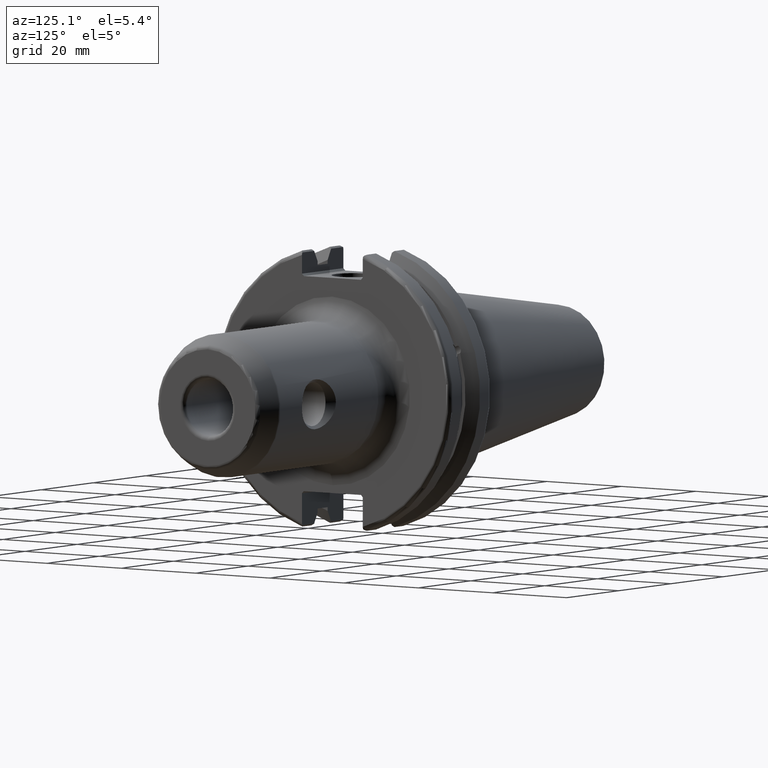
[diagram: clean part render]
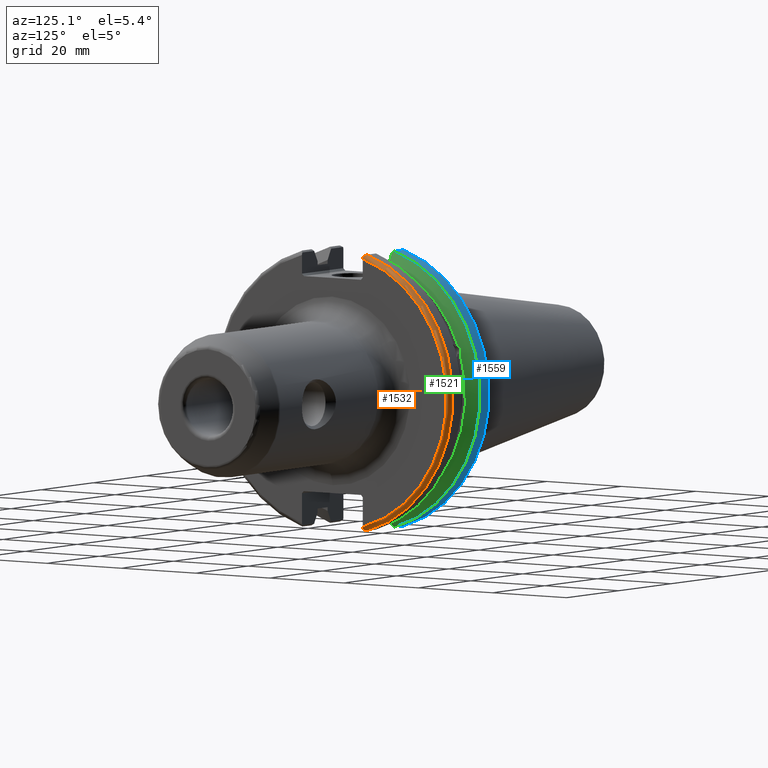
[diagram: same view with three faces highlighted in distinct colors, each labeled with its STEP entity id]
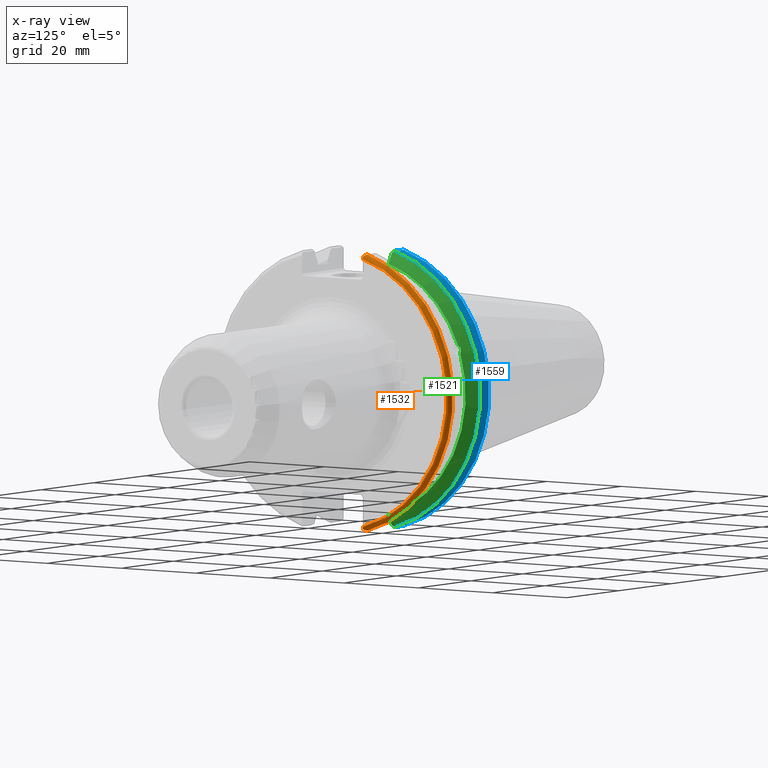
[diagram: x-ray of the same camera — body ghosted, the three highlighted faces saturated]
A machine part, auxiliary view with three faces highlighted in distinct colors.
The next image is the same camera in x-ray (body ghosted, the three faces saturated) — at least one of them is partly hidden behind the body in this view.
Their STEP definitions:

[orange] entity #1532 — the highlighted toroidal blend (fillet) surface has major radius 30.75 mm and minor (blend) radius 1 mm.
#80=B_SPLINE_CURVE_WITH_KNOTS('',3,(#2809,#2810,#2811,#2812,#2813,#2814),
 .UNSPECIFIED.,.F.,.F.,(4,2,4),(0.0977210450333169,0.111963554372601,0.150804064902975),
 .UNSPECIFIED.);
#81=B_SPLINE_CURVE_WITH_KNOTS('',3,(#2816,#2817,#2818,#2819,#2820,#2821),
 .UNSPECIFIED.,.F.,.F.,(4,2,4),(0.452741154494497,0.491581665024871,0.505824174364157),
 .UNSPECIFIED.);
#82=B_SPLINE_CURVE_WITH_KNOTS('',3,(#2823,#2824,#2825,#2826,#2827,#2828,
#2829,#2830),.UNSPECIFIED.,.F.,.F.,(4,2,2,4),(-0.104302157163828,-0.0778717450894463,
-0.0364423539742873,0.),.UNSPECIFIED.);
#83=B_SPLINE_CURVE_WITH_KNOTS('',3,(#2833,#2834,#2835,#2836,#2837,#2838,
#2839,#2840),.UNSPECIFIED.,.F.,.F.,(4,2,2,4),(0.,0.0343524753874978,0.0729784742461449,
0.104180282751877),.UNSPECIFIED.);
#400=FACE_OUTER_BOUND('',#498,.T.);
#498=EDGE_LOOP('',(#1261,#1262,#1263,#1264,#1265,#1266));
#563=CIRCLE('',#1626,30.75);
#597=CIRCLE('',#1712,31.75);
#638=VERTEX_POINT('',#2358);
#639=VERTEX_POINT('',#2359);
#735=VERTEX_POINT('',#2808);
#736=VERTEX_POINT('',#2815);
#737=VERTEX_POINT('',#2822);
#738=VERTEX_POINT('',#2831);
#801=EDGE_CURVE('',#638,#639,#563,.T.);
#928=EDGE_CURVE('',#735,#638,#80,.T.);
#929=EDGE_CURVE('',#639,#736,#81,.T.);
#930=EDGE_CURVE('',#736,#737,#82,.T.);
#931=EDGE_CURVE('',#737,#738,#597,.T.);
#932=EDGE_CURVE('',#738,#735,#83,.T.);
#1261=ORIENTED_EDGE('',*,*,#928,.T.);
#1262=ORIENTED_EDGE('',*,*,#801,.T.);
#1263=ORIENTED_EDGE('',*,*,#929,.T.);
#1264=ORIENTED_EDGE('',*,*,#930,.T.);
#1265=ORIENTED_EDGE('',*,*,#931,.T.);
#1266=ORIENTED_EDGE('',*,*,#932,.T.);
#1485=TOROIDAL_SURFACE('',#1711,30.75,1.);
#1532=ADVANCED_FACE('',(#400),#1485,.T.);
#1626=AXIS2_PLACEMENT_3D('',#2360,#1837,#1838);
#1711=AXIS2_PLACEMENT_3D('',#2807,#2060,#2061);
#1712=AXIS2_PLACEMENT_3D('',#2832,#2062,#2063);
#1837=DIRECTION('center_axis',(-1.,0.,0.));
#1838=DIRECTION('ref_axis',(0.,1.,-6.12323399573677E-17));
#2060=DIRECTION('center_axis',(1.,0.,0.));
#2061=DIRECTION('ref_axis',(0.,0.,-1.));
#2062=DIRECTION('center_axis',(1.,0.,0.));
#2063=DIRECTION('ref_axis',(0.,1.,-6.12323399573677E-17));
#2358=CARTESIAN_POINT('',(19.05,8.19,29.6392712461019));
#2359=CARTESIAN_POINT('',(19.05,8.19,-29.6392712461019));
#2360=CARTESIAN_POINT('Origin',(19.05,0.,0.));
#2807=CARTESIAN_POINT('Origin',(18.05,0.,0.));
#2808=CARTESIAN_POINT('',(18.9058722749097,8.19,30.1755016258903));
#2809=CARTESIAN_POINT('Ctrl Pts',(18.9058722749097,8.19,30.1755016258903));
#2810=CARTESIAN_POINT('Ctrl Pts',(18.9318163728133,8.19,30.131014531546));
#2811=CARTESIAN_POINT('Ctrl Pts',(18.9539643471756,8.19,30.0852355256475));
#2812=CARTESIAN_POINT('Ctrl Pts',(19.020485567083,8.19,29.9212724384851));
#2813=CARTESIAN_POINT('Ctrl Pts',(19.05,8.19,29.7687396145364));
#2814=CARTESIAN_POINT('Ctrl Pts',(19.05,8.19,29.6392712461019));
#2815=CARTESIAN_POINT('',(18.9058722749097,8.19,-30.1755016258903));
#2816=CARTESIAN_POINT('Ctrl Pts',(19.05,8.19,-29.6392712461019));
#2817=CARTESIAN_POINT('Ctrl Pts',(19.05,8.19,-29.7687396145364));
#2818=CARTESIAN_POINT('Ctrl Pts',(19.0204855670831,8.19,-29.9212724384851));
#2819=CARTESIAN_POINT('Ctrl Pts',(18.9539643471756,8.19,-30.0852355256475));
#2820=CARTESIAN_POINT('Ctrl Pts',(18.9318163728133,8.19,-30.131014531546));
#2821=CARTESIAN_POINT('Ctrl Pts',(18.9058722749097,8.19,-30.1755016258903));
#2822=CARTESIAN_POINT('',(18.05,8.67204822802685,-30.5427254764662));
#2823=CARTESIAN_POINT('Ctrl Pts',(18.9058722749097,8.19,-30.1755016258903));
#2824=CARTESIAN_POINT('Ctrl Pts',(18.8644673620074,8.25871605728282,-30.2278494485451));
#2825=CARTESIAN_POINT('Ctrl Pts',(18.8119751533981,8.32529543089522,-30.2785695477496));
#2826=CARTESIAN_POINT('Ctrl Pts',(18.6711011886212,8.46607530335799,-30.3858155116254));
#2827=CARTESIAN_POINT('Ctrl Pts',(18.545044361706,8.551646780666,-30.4510037761381));
#2828=CARTESIAN_POINT('Ctrl Pts',(18.3129472218859,8.64410239894262,-30.5214363722497));
#2829=CARTESIAN_POINT('Ctrl Pts',(18.1714745132476,8.67204822802685,-30.5427254764662));
#2830=CARTESIAN_POINT('Ctrl Pts',(18.05,8.67204822802685,-30.5427254764662));
#2831=CARTESIAN_POINT('',(18.05,8.67204822802685,30.5427254764662));
#2832=CARTESIAN_POINT('Origin',(18.05,0.,0.));
#2833=CARTESIAN_POINT('Ctrl Pts',(18.05,8.67204822802685,30.5427254764662));
#2834=CARTESIAN_POINT('Ctrl Pts',(18.1645082512917,8.67204822802685,30.5427254764662));
#2835=CARTESIAN_POINT('Ctrl Pts',(18.2983170433775,8.6471881193939,30.5237870709558));
#2836=CARTESIAN_POINT('Ctrl Pts',(18.5184414294771,8.56482138642532,30.4610401774263));
#2837=CARTESIAN_POINT('Ctrl Pts',(18.6396724190507,8.48862804755883,30.4029961692546));
#2838=CARTESIAN_POINT('Ctrl Pts',(18.7926702662319,8.34909446036477,30.2966996242308));
#2839=CARTESIAN_POINT('Ctrl Pts',(18.8574463042989,8.27036828330781,30.2367261024977));
#2840=CARTESIAN_POINT('Ctrl Pts',(18.9058722749097,8.19,30.1755016258903));

[blue] entity #1559 — the highlighted cylindrical surface (partial cylindrical patch) has radius 31.75 mm, axis along (1, 0, 0).
#167=LINE('',#2994,#259);
#182=LINE('',#3047,#274);
#259=VECTOR('',#2109,10.);
#274=VECTOR('',#2168,10.);
#302=CYLINDRICAL_SURFACE('',#1750,31.75);
#427=FACE_OUTER_BOUND('',#526,.T.);
#526=EDGE_LOOP('',(#1409,#1410,#1411,#1412));
#583=CIRCLE('',#1686,31.75);
#601=CIRCLE('',#1726,31.75);
#708=VERTEX_POINT('',#2729);
#709=VERTEX_POINT('',#2733);
#758=VERTEX_POINT('',#2968);
#759=VERTEX_POINT('',#2977);
#894=EDGE_CURVE('',#708,#709,#583,.T.);
#967=EDGE_CURVE('',#758,#759,#601,.T.);
#970=EDGE_CURVE('',#759,#708,#167,.T.);
#994=EDGE_CURVE('',#709,#758,#182,.T.);
#1409=ORIENTED_EDGE('',*,*,#967,.F.);
#1410=ORIENTED_EDGE('',*,*,#994,.F.);
#1411=ORIENTED_EDGE('',*,*,#894,.F.);
#1412=ORIENTED_EDGE('',*,*,#970,.F.);
#1559=ADVANCED_FACE('',(#427),#302,.T.);
#1686=AXIS2_PLACEMENT_3D('',#2734,#1993,#1994);
#1726=AXIS2_PLACEMENT_3D('',#2978,#2105,#2106);
#1750=AXIS2_PLACEMENT_3D('',#3048,#2169,#2170);
#1993=DIRECTION('center_axis',(1.,0.,0.));
#1994=DIRECTION('ref_axis',(0.,0.,-1.));
#2105=DIRECTION('center_axis',(-1.,0.,0.));
#2106=DIRECTION('ref_axis',(0.,1.,1.60812264967664E-16));
#2109=DIRECTION('',(1.,0.,0.));
#2168=DIRECTION('',(-1.,0.,0.));
#2169=DIRECTION('center_axis',(1.,0.,0.));
#2170=DIRECTION('ref_axis',(0.,1.,0.));
#2729=CARTESIAN_POINT('',(7.60793323092436,8.67204822802685,-30.5427254764662));
#2733=CARTESIAN_POINT('',(7.60793323092436,8.67204822802685,30.5427254764662));
#2734=CARTESIAN_POINT('Origin',(7.60793323092436,0.,0.));
#2968=CARTESIAN_POINT('',(4.175,8.67204822802685,30.5427254764662));
#2977=CARTESIAN_POINT('',(4.175,8.67204822802685,-30.5427254764662));
#2978=CARTESIAN_POINT('Origin',(4.175,0.,0.));
#2994=CARTESIAN_POINT('',(5.39146661546218,8.67204822802685,-30.5427254764662));
#3047=CARTESIAN_POINT('',(5.39146661546218,8.67204822802685,30.5427254764662));
#3048=CARTESIAN_POINT('Origin',(5.39146661546218,0.,0.));

[green] entity #1521 — the highlighted conical surface has half-angle 60 deg.
#19=(
BOUNDED_CURVE()
B_SPLINE_CURVE(2,(#2726,#2727,#2728),.UNSPECIFIED.,.F.,.F.)
B_SPLINE_CURVE_WITH_KNOTS((3,3),(0.,0.276549142796136),.UNSPECIFIED.)
CURVE()
GEOMETRIC_REPRESENTATION_ITEM()
RATIONAL_B_SPLINE_CURVE((1.,1.00095203903316,1.00031614444813))
REPRESENTATION_ITEM('')
);
#20=(
BOUNDED_CURVE()
B_SPLINE_CURVE(2,(#2730,#2731,#2732),.UNSPECIFIED.,.F.,.F.)
B_SPLINE_CURVE_WITH_KNOTS((3,3),(0.,0.0639048713676127),.UNSPECIFIED.)
CURVE()
GEOMETRIC_REPRESENTATION_ITEM()
RATIONAL_B_SPLINE_CURVE((1.,1.00028444218281,1.00047644010571))
REPRESENTATION_ITEM('')
);
#21=(
BOUNDED_CURVE()
B_SPLINE_CURVE(2,(#2736,#2737,#2738),.UNSPECIFIED.,.F.,.F.)
B_SPLINE_CURVE_WITH_KNOTS((3,3),(0.329353533631191,0.393258405001024),
 .UNSPECIFIED.)
CURVE()
GEOMETRIC_REPRESENTATION_ITEM()
RATIONAL_B_SPLINE_CURVE((1.00047644010564,1.00028444218277,1.))
REPRESENTATION_ITEM('')
);
#22=(
BOUNDED_CURVE()
B_SPLINE_CURVE(2,(#2740,#2741,#2742),.UNSPECIFIED.,.F.,.F.)
B_SPLINE_CURVE_WITH_KNOTS((3,3),(0.0550586467391943,0.33160778953585),
 .UNSPECIFIED.)
CURVE()
GEOMETRIC_REPRESENTATION_ITEM()
RATIONAL_B_SPLINE_CURVE((1.00031614445155,1.00095203904346,1.))
REPRESENTATION_ITEM('')
);
#54=CONICAL_SURFACE('',#1684,30.3546886482472,1.0471975511966);
#77=B_SPLINE_CURVE_WITH_KNOTS('',3,(#2680,#2681,#2682,#2683,#2684,#2685,
#2686,#2687,#2688,#2689,#2690,#2691,#2692,#2693),.UNSPECIFIED.,.F.,.F.,
(4,2,2,2,2,2,4),(0.451995700189024,0.464547828547662,0.504528771685167,
0.544509714822672,0.584490657960177,0.624471601097682,0.637023729456319),
 .UNSPECIFIED.);
#389=FACE_OUTER_BOUND('',#483,.T.);
#483=EDGE_LOOP('',(#1201,#1202,#1203,#1204,#1205,#1206,#1207,#1208));
#582=CIRCLE('',#1685,28.9593772964944);
#583=CIRCLE('',#1686,31.75);
#584=CIRCLE('',#1687,28.9593772964944);
#701=VERTEX_POINT('',#2677);
#702=VERTEX_POINT('',#2679);
#706=VERTEX_POINT('',#2723);
#707=VERTEX_POINT('',#2725);
#708=VERTEX_POINT('',#2729);
#709=VERTEX_POINT('',#2733);
#710=VERTEX_POINT('',#2735);
#711=VERTEX_POINT('',#2739);
#886=EDGE_CURVE('',#702,#701,#77,.T.);
#891=EDGE_CURVE('',#706,#701,#582,.T.);
#892=EDGE_CURVE('',#706,#707,#19,.T.);
#893=EDGE_CURVE('',#708,#707,#20,.T.);
#894=EDGE_CURVE('',#708,#709,#583,.T.);
#895=EDGE_CURVE('',#710,#709,#21,.T.);
#896=EDGE_CURVE('',#710,#711,#22,.T.);
#897=EDGE_CURVE('',#702,#711,#584,.T.);
#1201=ORIENTED_EDGE('',*,*,#886,.T.);
#1202=ORIENTED_EDGE('',*,*,#891,.F.);
#1203=ORIENTED_EDGE('',*,*,#892,.T.);
#1204=ORIENTED_EDGE('',*,*,#893,.F.);
#1205=ORIENTED_EDGE('',*,*,#894,.T.);
#1206=ORIENTED_EDGE('',*,*,#895,.F.);
#1207=ORIENTED_EDGE('',*,*,#896,.T.);
#1208=ORIENTED_EDGE('',*,*,#897,.F.);
#1521=ADVANCED_FACE('',(#389),#54,.T.);
#1684=AXIS2_PLACEMENT_3D('',#2722,#1989,#1990);
#1685=AXIS2_PLACEMENT_3D('',#2724,#1991,#1992);
#1686=AXIS2_PLACEMENT_3D('',#2734,#1993,#1994);
#1687=AXIS2_PLACEMENT_3D('',#2743,#1995,#1996);
#1989=DIRECTION('center_axis',(-1.,0.,0.));
#1990=DIRECTION('ref_axis',(0.,1.,0.));
#1991=DIRECTION('center_axis',(1.,0.,0.));
#1992=DIRECTION('ref_axis',(0.,0.,-1.));
#1993=DIRECTION('center_axis',(1.,0.,0.));
#1994=DIRECTION('ref_axis',(0.,0.,-1.));
#1995=DIRECTION('center_axis',(1.,0.,0.));
#1996=DIRECTION('ref_axis',(0.,0.,-1.));
#2677=CARTESIAN_POINT('',(9.2191,27.4956274489925,9.09043478536247));
#2679=CARTESIAN_POINT('',(9.2191,26.9060914640648,10.7101715919071));
#2680=CARTESIAN_POINT('Ctrl Pts',(9.2191,26.9060914640648,10.7101715919071));
#2681=CARTESIAN_POINT('Ctrl Pts',(9.20497959280038,26.9406927482839,10.6893765730703));
#2682=CARTESIAN_POINT('Ctrl Pts',(9.19150701821434,26.9744191989197,10.6676007180674));
#2683=CARTESIAN_POINT('Ctrl Pts',(9.13811855884095,27.1113422433188,10.5723885976054));
#2684=CARTESIAN_POINT('Ctrl Pts',(9.09998029158246,27.2180531796526,10.4801333026531));
#2685=CARTESIAN_POINT('Ctrl Pts',(9.04778935539424,27.3968610665578,10.2639559818059));
#2686=CARTESIAN_POINT('Ctrl Pts',(9.0341,27.4684373304961,10.139516340139));
#2687=CARTESIAN_POINT('Ctrl Pts',(9.0341,27.559599249844,9.88905102521651));
#2688=CARTESIAN_POINT('Ctrl Pts',(9.04778935539424,27.5847569104122,9.74771639360671));
#2689=CARTESIAN_POINT('Ctrl Pts',(9.09998029158246,27.5867382255984,9.46717946402648));
#2690=CARTESIAN_POINT('Ctrl Pts',(9.13811855884095,27.5642934663232,9.32791534028656));
#2691=CARTESIAN_POINT('Ctrl Pts',(9.19150701821433,27.5206055003512,9.16696618806878));
#2692=CARTESIAN_POINT('Ctrl Pts',(9.20497959280038,27.5087667900418,9.12860597076219));
#2693=CARTESIAN_POINT('Ctrl Pts',(9.21909999999999,27.4956274489925,9.09043478536247));
#2722=CARTESIAN_POINT('Origin',(8.41351661546218,0.,0.));
#2723=CARTESIAN_POINT('',(9.2191,8.19,-27.7771386827498));
#2724=CARTESIAN_POINT('Origin',(9.2191,0.,0.));
#2725=CARTESIAN_POINT('',(7.88668530351257,8.19,-30.1755016258903));
#2726=CARTESIAN_POINT('Ctrl Pts',(9.2191,8.19,-27.7771386827498));
#2727=CARTESIAN_POINT('Ctrl Pts',(8.58046356152393,8.19,-28.9303689539705));
#2728=CARTESIAN_POINT('Ctrl Pts',(7.88668530351257,8.19,-30.1755016258903));
#2729=CARTESIAN_POINT('',(7.60793323092436,8.67204822802685,-30.5427254764662));
#2730=CARTESIAN_POINT('Ctrl Pts',(7.60793323092436,8.67204822802686,-30.5427254764662));
#2731=CARTESIAN_POINT('Ctrl Pts',(7.74899148121627,8.42917748262647,-30.357706789263));
#2732=CARTESIAN_POINT('Ctrl Pts',(7.88668530351257,8.19,-30.1755016258903));
#2733=CARTESIAN_POINT('',(7.60793323092436,8.67204822802685,30.5427254764662));
#2734=CARTESIAN_POINT('Origin',(7.60793323092436,0.,0.));
#2735=CARTESIAN_POINT('',(7.88668530351256,8.19,30.1755016258903));
#2736=CARTESIAN_POINT('Ctrl Pts',(7.88668530351256,8.19,30.1755016258903));
#2737=CARTESIAN_POINT('Ctrl Pts',(7.74899148121158,8.42917748263469,30.3577067892692));
#2738=CARTESIAN_POINT('Ctrl Pts',(7.60793323092436,8.67204822802686,30.5427254764662));
#2739=CARTESIAN_POINT('',(9.2191,8.19,27.7771386827498));
#2740=CARTESIAN_POINT('Ctrl Pts',(7.88668530351256,8.19,30.1755016258903));
#2741=CARTESIAN_POINT('Ctrl Pts',(8.58046356152345,8.19,28.9303689539713));
#2742=CARTESIAN_POINT('Ctrl Pts',(9.2191,8.19,27.7771386827498));
#2743=CARTESIAN_POINT('Origin',(9.2191,0.,0.));